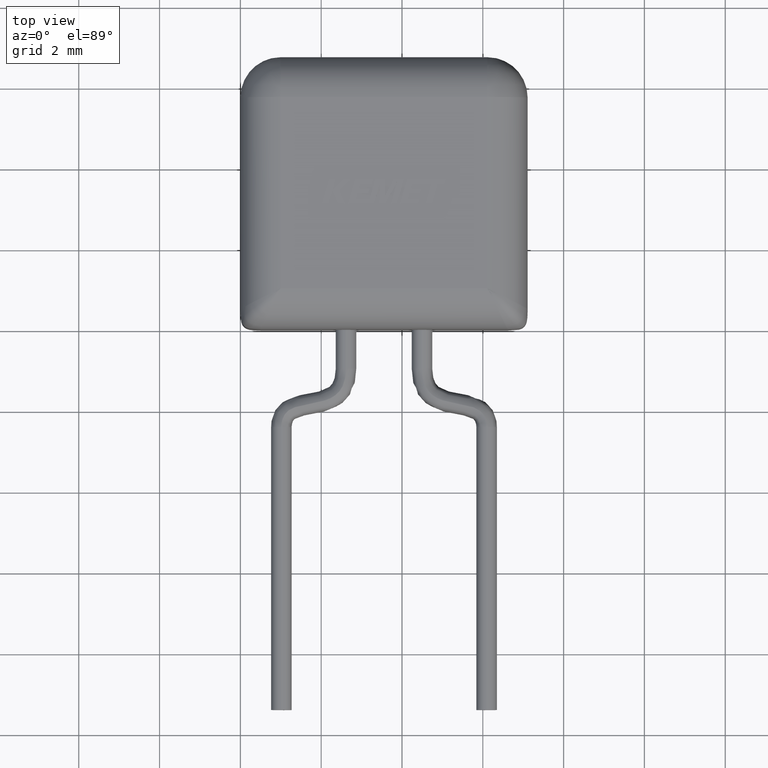
[diagram: clean part render]
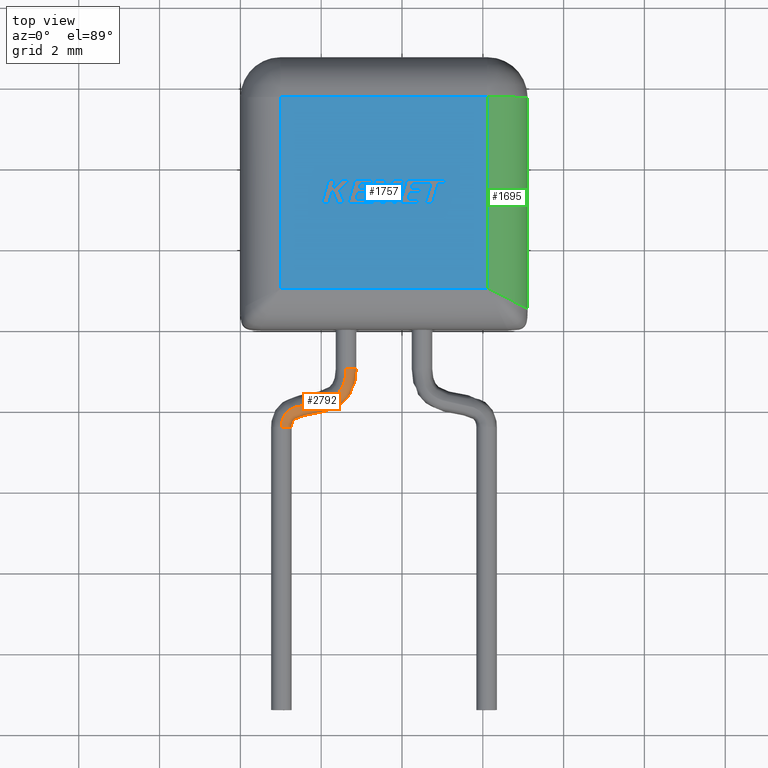
[diagram: same view with three faces highlighted in distinct colors, each labeled with its STEP entity id]
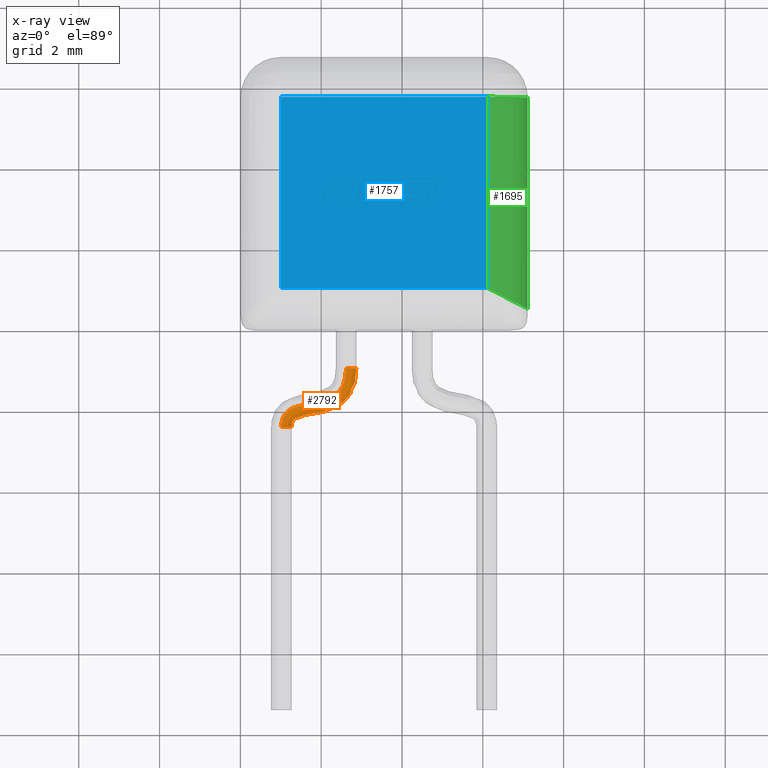
[diagram: x-ray of the same camera — body ghosted, the three highlighted faces saturated]
A machine part, top view with three faces highlighted in distinct colors.
The next image is the same camera in x-ray (body ghosted, the three faces saturated) — at least one of them is partly hidden behind the body in this view.
Their STEP definitions:

[orange] entity #2792 — the highlighted face is a freeform B-spline surface patch.
#30 = CARTESIAN_POINT ( 'NONE',  ( 2.074005809109704200, -1.170001000631125400, 2.290000000000000500 ) ) ;
#49 = CARTESIAN_POINT ( 'NONE',  ( 2.549884300647687200, -1.359776929998931700, 2.289999999999999600 ) ) ;
#50 = CARTESIAN_POINT ( 'NONE',  ( 2.062130045538650900, -1.192115525184604500, 1.780000000000000000 ) ) ;
#109 = CARTESIAN_POINT ( 'NONE',  ( 0.7537591950692089600, -1.702203256233672600, 2.289999999999999600 ) ) ;
#234 = VERTEX_POINT ( 'NONE', #3290 ) ;
#245 = CIRCLE ( 'NONE', #731, 0.2550000000000000000 ) ;
#250 = CARTESIAN_POINT ( 'NONE',  ( 2.587119580015718100, -1.242790861669816200, 1.780000000000000900 ) ) ;
#313 = ORIENTED_EDGE ( 'NONE', *, *, #4001, .F. ) ;
#319 = CARTESIAN_POINT ( 'NONE',  ( 1.131958511073970100, -2.049256904477912800, 1.780000000000000200 ) ) ;
#341 = CARTESIAN_POINT ( 'NONE',  ( 2.822460855836193400, -1.880694937676786500, 1.779999999999999100 ) ) ;
#353 = CARTESIAN_POINT ( 'NONE',  ( 2.587119580015718100, -1.242790861669816200, 1.780000000000000900 ) ) ;
#367 = CARTESIAN_POINT ( 'NONE',  ( 2.822460855836193400, -1.880694937676786500, 2.290000000000000000 ) ) ;
#377 = CARTESIAN_POINT ( 'NONE',  ( 1.019818461102901800, -2.297954229647848600, 1.780000000000000000 ) ) ;
#388 = CARTESIAN_POINT ( 'NONE',  ( 2.437983122913019800, -1.541771340368349100, 2.289999999999999600 ) ) ;
#397 = CARTESIAN_POINT ( 'NONE',  ( 2.549884300647687200, -1.359776929998931700, 1.779999999999999600 ) ) ;
#405 = CARTESIAN_POINT ( 'NONE',  ( 1.321206900618610500, -1.916348650615721000, 2.290000000000000000 ) ) ;
#457 = CARTESIAN_POINT ( 'NONE',  ( 1.531442869489896700, -1.859060736523578300, 1.780000000000000000 ) ) ;
#484 = CARTESIAN_POINT ( 'NONE',  ( 2.610143827948569600, -1.106482868413217300, 1.780000000000000200 ) ) ;
#517 = CARTESIAN_POINT ( 'NONE',  ( 0.5052511517531967900, -2.366681745301825000, 2.290000000000000500 ) ) ;
#540 = CARTESIAN_POINT ( 'NONE',  ( 2.104868535347959000, -1.008836699693396200, 1.780000000000000200 ) ) ;
#568 = CARTESIAN_POINT ( 'NONE',  ( 2.088607302755791700, -1.128908727927591100, 2.290000000000000000 ) ) ;
#731 = AXIS2_PLACEMENT_3D ( 'NONE', #1517, #2044, #1201 ) ;
#739 = CARTESIAN_POINT ( 'NONE',  ( 0.7537591950692089600, -1.702203256233672600, 1.780000000000000000 ) ) ;
#757 = CARTESIAN_POINT ( 'NONE',  ( 2.437983122913019800, -1.541771340368349100, 1.779999999999999600 ) ) ;
#778 = CARTESIAN_POINT ( 'NONE',  ( 2.499697824657698900, -1.458955382789392900, 1.780000000000000000 ) ) ;
#804 = CARTESIAN_POINT ( 'NONE',  ( 2.615000000000000700, -0.9568300000000005100, 1.780000000000000200 ) ) ;
#825 = CARTESIAN_POINT ( 'NONE',  ( 3.085631857275643200, -1.356672995412041300, 1.780000000000000200 ) ) ;
#832 = CARTESIAN_POINT ( 'NONE',  ( 2.614868535347958800, -1.008836699693396000, 1.780000000000000000 ) ) ;
#842 = CARTESIAN_POINT ( 'NONE',  ( 2.134638495703354600, -2.270692406181152200, 1.780000000000000700 ) ) ;
#866 = CARTESIAN_POINT ( 'NONE',  ( 2.400925794340954800, -2.187819091392433400, 1.780000000000000200 ) ) ;
#888 = CARTESIAN_POINT ( 'NONE',  ( 1.530867786842248400, -2.358482172163493200, 2.290000000000000500 ) ) ;
#910 = CARTESIAN_POINT ( 'NONE',  ( 1.622149668822278500, -2.359899811352273300, 2.290000000000000500 ) ) ;
#922 = CARTESIAN_POINT ( 'NONE',  ( 1.045172783188769600, -2.193943947826118900, 1.779999999999999800 ) ) ;
#934 = CARTESIAN_POINT ( 'NONE',  ( 3.125000000000001300, -0.9568300000000006200, 2.290000000000000500 ) ) ;
#942 = CARTESIAN_POINT ( 'NONE',  ( 2.012893723359805400, -1.774587104453581700, 1.780000000000000700 ) ) ;
#949 = AXIS2_PLACEMENT_3D ( 'NONE', #6351, #2219, #5267 ) ;
#964 = CARTESIAN_POINT ( 'NONE',  ( 2.499697824657698900, -1.458955382789392900, 1.780000000000000000 ) ) ;
#972 = ORIENTED_EDGE ( 'NONE', *, *, #1285, .F. ) ;
#982 = CARTESIAN_POINT ( 'NONE',  ( 1.131958511073970100, -2.049256904477912800, 1.780000000000000200 ) ) ;
#1002 = CARTESIAN_POINT ( 'NONE',  ( 2.499697824657698900, -1.458955382789392900, 1.780000000000000000 ) ) ;
#1069 = CARTESIAN_POINT ( 'NONE',  ( 2.101401957468082700, -1.050179310353557300, 1.780000000000000700 ) ) ;
#1081 = CARTESIAN_POINT ( 'NONE',  ( 1.321206900618610500, -1.916348650615721000, 1.780000000000000500 ) ) ;
#1092 = CARTESIAN_POINT ( 'NONE',  ( 2.062130045538650900, -1.192115525184604500, 2.289999999999999600 ) ) ;
#1140 = CARTESIAN_POINT ( 'NONE',  ( 1.704679356832866000, -1.315862372875403100, 2.290000000000000000 ) ) ;
#1201 = DIRECTION ( 'NONE',  ( 0.0000000000000000000, 0.0000000000000000000, -1.000000000000000000 ) ) ;
#1285 = EDGE_CURVE ( 'NONE', #1357, #5204, #6476, .T. ) ;
#1305 = CARTESIAN_POINT ( 'NONE',  ( 2.549884300647687200, -1.359776929998931700, 1.779999999999999600 ) ) ;
#1320 = CARTESIAN_POINT ( 'NONE',  ( 1.045172783188769600, -2.193943947826118900, 1.779999999999999800 ) ) ;
#1331 = CARTESIAN_POINT ( 'NONE',  ( 2.615000000000000700, -0.9568300000000005100, 1.780000000000000200 ) ) ;
#1342 = CARTESIAN_POINT ( 'NONE',  ( 1.191846210974526000, -1.995412976012255200, 1.780000000000000000 ) ) ;
#1357 = VERTEX_POINT ( 'NONE', #2963 ) ;
#1365 = CARTESIAN_POINT ( 'NONE',  ( 2.201120669814173000, -1.714313174633128400, 2.290000000000000500 ) ) ;
#1387 = CARTESIAN_POINT ( 'NONE',  ( 3.085631857275643200, -1.356672995412041300, 2.290000000000000000 ) ) ;
#1413 = CARTESIAN_POINT ( 'NONE',  ( 2.400925794340954800, -2.187819091392433400, 2.290000000000000500 ) ) ;
#1436 = CARTESIAN_POINT ( 'NONE',  ( 1.784927744996240200, -1.819851054957779500, 2.290000000000000500 ) ) ;
#1447 = CARTESIAN_POINT ( 'NONE',  ( 1.015247165164532500, -2.368698253309393200, 1.780000000000000200 ) ) ;
#1448 = CARTESIAN_POINT ( 'NONE',  ( 2.615000000000000700, -0.9568300000000005100, 2.290000000000000500 ) ) ;
#1455 = CARTESIAN_POINT ( 'NONE',  ( 2.615000000000000700, -0.9568300000000005100, 2.290000000000000500 ) ) ;
#1468 = CARTESIAN_POINT ( 'NONE',  ( 1.784927744996240200, -1.819851054957779500, 1.780000000000000000 ) ) ;
#1517 = CARTESIAN_POINT ( 'NONE',  ( 2.615000000000000700, -0.9568300000000005100, 2.035000000000000100 ) ) ;
#1538 = CARTESIAN_POINT ( 'NONE',  ( 2.201120669814173000, -1.714313174633128400, 1.779999999999999800 ) ) ;
#1598 = CARTESIAN_POINT ( 'NONE',  ( 2.088607302755791700, -1.128908727927591100, 1.780000000000000200 ) ) ;
#1667 = CARTESIAN_POINT ( 'NONE',  ( 1.045172783188769600, -2.193943947826118900, 2.289999999999999600 ) ) ;
#1668 = CARTESIAN_POINT ( 'NONE',  ( 0.8863089501418147700, -1.583497287607830200, 2.290000000000000000 ) ) ;
#1679 = ORIENTED_EDGE ( 'NONE', *, *, #4606, .T. ) ;
#1821 = CARTESIAN_POINT ( 'NONE',  ( 0.5120091319425110800, -2.220228973169733300, 1.780000000000000200 ) ) ;
#1833 = CARTESIAN_POINT ( 'NONE',  ( 2.201120669814173000, -1.714313174633128400, 1.779999999999999800 ) ) ;
#1843 = CARTESIAN_POINT ( 'NONE',  ( 2.615000000000000700, -0.9568300000000005100, 1.780000000000000200 ) ) ;
#1898 = CARTESIAN_POINT ( 'NONE',  ( 1.045172783188769600, -2.193943947826118900, 2.289999999999999600 ) ) ;
#1922 = CARTESIAN_POINT ( 'NONE',  ( 1.497383471807237600, -2.407328664416680500, 2.290000000000000000 ) ) ;
#1933 = CARTESIAN_POINT ( 'NONE',  ( 1.014999999999996100, -2.406829999999998500, 1.780000000000000200 ) ) ;
#1944 = CARTESIAN_POINT ( 'NONE',  ( 3.124868535347959500, -1.008836699693396200, 2.290000000000000500 ) ) ;
#1970 = CARTESIAN_POINT ( 'NONE',  ( 1.524460958118500200, -2.377591545109373900, 1.780000000000000000 ) ) ;
#1994 = CARTESIAN_POINT ( 'NONE',  ( 2.343189242479164900, -1.631962061346997000, 2.290000000000000900 ) ) ;
#2044 = DIRECTION ( 'NONE',  ( 0.0000000000000000000, -1.000000000000000000, 0.0000000000000000000 ) ) ;
#2109 = B_SPLINE_CURVE_WITH_KNOTS ( 'NONE', 3,
 ( #1448, #3520, #5585, #6220, #49, #6268, #3722, #3648, #6196, #5724, #3153, #5249, #2652, #3623, #5184, #5767, #1667, #4169, #4692, #5208 ),
 .UNSPECIFIED., .F., .F.,
 ( 4, 1, 1, 1, 1, 1, 1, 1, 1, 1, 1, 1, 1, 1, 1, 1, 1, 4 ),
 ( 0.0000000000000000000, 0.06342468864548422800, 0.1189530044408957000, 0.1681323856285391300, 0.2125779591982254200, 0.2538796813893964800, 0.2934636714594621200, 0.3714530023859107200, 0.4515100979993099700, 0.5336014173042280500, 0.6546871446179836100, 0.7643538128143175800, 0.7981158558278648200, 0.8345807126270272700, 0.8735248396365576900, 0.9131030441429317500, 0.9534956162015753000, 0.9999999999999998900 ),
 .UNSPECIFIED. ) ;
#2132 = CARTESIAN_POINT ( 'NONE',  ( 2.001315545287391200, -1.240807257873826700, 1.780000000000000200 ) ) ;
#2153 = CARTESIAN_POINT ( 'NONE',  ( 1.140785276839166900, -1.430004434564585700, 2.290000000000000000 ) ) ;
#2219 = DIRECTION ( 'NONE',  ( -0.003953937269739775900, -0.9999921831594820200, 0.0000000000000000000 ) ) ;
#2296 = CARTESIAN_POINT ( 'NONE',  ( 2.012893723359805400, -1.774587104453581700, 1.780000000000000700 ) ) ;
#2303 = CARTESIAN_POINT ( 'NONE',  ( 0.5594777795352914300, -2.029405723488745500, 1.779999999999999800 ) ) ;
#2322 = CARTESIAN_POINT ( 'NONE',  ( 1.014999999999996100, -2.406829999999998500, 1.780000000000000200 ) ) ;
#2391 = CARTESIAN_POINT ( 'NONE',  ( 2.343189242479164900, -1.631962061346997000, 1.780000000000000500 ) ) ;
#2417 = CARTESIAN_POINT ( 'NONE',  ( 1.131958511073970100, -2.049256904477912800, 2.290000000000000500 ) ) ;
#2437 = CARTESIAN_POINT ( 'NONE',  ( 1.497383471807237600, -2.407328664416680500, 1.779999999999999600 ) ) ;
#2454 = CARTESIAN_POINT ( 'NONE',  ( 1.510157827078731000, -2.396310552722153500, 2.289999999999999600 ) ) ;
#2472 = CARTESIAN_POINT ( 'NONE',  ( 1.019818461102901800, -2.297954229647848600, 2.289999999999999600 ) ) ;
#2502 = CARTESIAN_POINT ( 'NONE',  ( 2.105000000000000900, -0.9568300000000006200, 2.290000000000000500 ) ) ;
#2567 = CARTESIAN_POINT ( 'NONE',  ( 2.343189242479164900, -1.631962061346997000, 1.780000000000000500 ) ) ;
#2597 = CARTESIAN_POINT ( 'NONE',  ( 1.015247165164532500, -2.368698253309393200, 1.780000000000000200 ) ) ;
#2652 = CARTESIAN_POINT ( 'NONE',  ( 1.321206900618610500, -1.916348650615721000, 2.290000000000000000 ) ) ;
#2689 = CARTESIAN_POINT ( 'NONE',  ( 0.5120091319425110800, -2.220228973169733300, 2.289999999999999600 ) ) ;
#2713 = CARTESIAN_POINT ( 'NONE',  ( 1.704679356832866000, -1.315862372875403100, 1.780000000000000000 ) ) ;
#2792 = ADVANCED_FACE ( 'NONE', ( #5525 ), #4580, .T. ) ;
#2811 = CARTESIAN_POINT ( 'NONE',  ( 1.014999999999996100, -2.406829999999998500, 2.290000000000000500 ) ) ;
#2816 = CARTESIAN_POINT ( 'NONE',  ( 3.118885698429058300, -1.162786426472878000, 1.780000000000000700 ) ) ;
#2825 = EDGE_LOOP ( 'NONE', ( #5858, #1679, #313, #972 ) ) ;
#2903 = CARTESIAN_POINT ( 'NONE',  ( 1.784927744996240200, -1.819851054957779500, 1.780000000000000000 ) ) ;
#2906 = VERTEX_POINT ( 'NONE', #2811 ) ;
#2938 = CARTESIAN_POINT ( 'NONE',  ( 1.531442869489896700, -1.859060736523578300, 1.780000000000000000 ) ) ;
#2949 = CARTESIAN_POINT ( 'NONE',  ( 1.510157827078731000, -2.396310552722153500, 1.780000000000000000 ) ) ;
#2963 = CARTESIAN_POINT ( 'NONE',  ( 2.615000000000000700, -0.9568300000000005100, 1.780000000000000200 ) ) ;
#2972 = CARTESIAN_POINT ( 'NONE',  ( 2.610143827948569600, -1.106482868413217300, 2.290000000000000000 ) ) ;
#2997 = CARTESIAN_POINT ( 'NONE',  ( 1.015247165164532500, -2.368698253309393200, 2.290000000000000500 ) ) ;
#3021 = CARTESIAN_POINT ( 'NONE',  ( 1.524460958118500200, -2.377591545109373900, 2.290000000000000500 ) ) ;
#3071 = CARTESIAN_POINT ( 'NONE',  ( 2.587119580015718100, -1.242790861669816200, 1.780000000000000900 ) ) ;
#3089 = CARTESIAN_POINT ( 'NONE',  ( 1.784927744996240200, -1.819851054957779500, 1.780000000000000000 ) ) ;
#3138 = CARTESIAN_POINT ( 'NONE',  ( 1.083150443577862300, -2.114008245178025500, 1.780000000000000700 ) ) ;
#3153 = CARTESIAN_POINT ( 'NONE',  ( 1.784927744996240200, -1.819851054957779500, 2.290000000000000500 ) ) ;
#3155 = CARTESIAN_POINT ( 'NONE',  ( 2.074005809109704200, -1.170001000631125400, 1.779999999999999100 ) ) ;
#3290 = CARTESIAN_POINT ( 'NONE',  ( 2.615000000000000700, -0.9568300000000005100, 2.290000000000000500 ) ) ;
#3426 = CARTESIAN_POINT ( 'NONE',  ( 3.025762792185672500, -1.549552859366738300, 1.779999999999999100 ) ) ;
#3448 = CARTESIAN_POINT ( 'NONE',  ( 3.118885698429058300, -1.162786426472878000, 2.290000000000000500 ) ) ;
#3457 = CARTESIAN_POINT ( 'NONE',  ( 2.201120669814173000, -1.714313174633128400, 1.779999999999999800 ) ) ;
#3470 = CARTESIAN_POINT ( 'NONE',  ( 2.614868535347958800, -1.008836699693396000, 2.290000000000000500 ) ) ;
#3478 = CARTESIAN_POINT ( 'NONE',  ( 2.343189242479164900, -1.631962061346997000, 1.780000000000000500 ) ) ;
#3509 = CARTESIAN_POINT ( 'NONE',  ( 2.549884300647687200, -1.359776929998931700, 2.289999999999999600 ) ) ;
#3520 = CARTESIAN_POINT ( 'NONE',  ( 2.614868535347958800, -1.008836699693396000, 2.290000000000000500 ) ) ;
#3594 = CARTESIAN_POINT ( 'NONE',  ( 1.019818461102901800, -2.297954229647848600, 1.780000000000000000 ) ) ;
#3623 = CARTESIAN_POINT ( 'NONE',  ( 1.191846210974526000, -1.995412976012255200, 2.290000000000000000 ) ) ;
#3648 = CARTESIAN_POINT ( 'NONE',  ( 2.343189242479164900, -1.631962061346997000, 2.290000000000000900 ) ) ;
#3649 = CARTESIAN_POINT ( 'NONE',  ( 2.053505389989847400, -1.202847743059912900, 1.779999999999999100 ) ) ;
#3674 = CARTESIAN_POINT ( 'NONE',  ( 2.040646561674422700, -1.215180293843567200, 2.290000000000000500 ) ) ;
#3699 = CARTESIAN_POINT ( 'NONE',  ( 2.104868535347959000, -1.008836699693396200, 2.290000000000000500 ) ) ;
#3722 = CARTESIAN_POINT ( 'NONE',  ( 2.437983122913019800, -1.541771340368349100, 2.289999999999999600 ) ) ;
#3724 = CARTESIAN_POINT ( 'NONE',  ( 0.8863089501418147700, -1.583497287607830200, 1.779999999999999600 ) ) ;
#3789 = CARTESIAN_POINT ( 'NONE',  ( 1.891148951016255800, -1.278481802726011600, 1.780000000000000700 ) ) ;
#3849 = CARTESIAN_POINT ( 'NONE',  ( 2.614868535347958800, -1.008836699693396000, 1.780000000000000000 ) ) ;
#3913 = CARTESIAN_POINT ( 'NONE',  ( 2.610143827948569600, -1.106482868413217300, 1.780000000000000200 ) ) ;
#3987 = CARTESIAN_POINT ( 'NONE',  ( 2.645731923283906300, -2.048743828850426500, 2.290000000000000500 ) ) ;
#4001 = EDGE_CURVE ( 'NONE', #5204, #2906, #5335, .T. ) ;
#4010 = CARTESIAN_POINT ( 'NONE',  ( 2.012893723359805400, -1.774587104453581700, 2.290000000000000500 ) ) ;
#4030 = CARTESIAN_POINT ( 'NONE',  ( 2.937265603776745500, -1.725795240394180500, 2.289999999999999600 ) ) ;
#4155 = CARTESIAN_POINT ( 'NONE',  ( 2.012893723359805400, -1.774587104453581700, 1.780000000000000700 ) ) ;
#4169 = CARTESIAN_POINT ( 'NONE',  ( 1.019818461102901800, -2.297954229647848600, 2.289999999999999600 ) ) ;
#4200 = EDGE_CURVE ( 'NONE', #1357, #234, #245, .T. ) ;
#4287 = CARTESIAN_POINT ( 'NONE',  ( 1.140785276839166900, -1.430004434564585700, 1.780000000000000200 ) ) ;
#4345 = CARTESIAN_POINT ( 'NONE',  ( 2.937265603776745500, -1.725795240394180500, 1.780000000000000000 ) ) ;
#4361 = CARTESIAN_POINT ( 'NONE',  ( 1.015247165164532500, -2.368698253309393200, 1.780000000000000200 ) ) ;
#4458 = CARTESIAN_POINT ( 'NONE',  ( 1.865176133159613900, -2.323839737040155600, 2.290000000000000000 ) ) ;
#4472 = CARTESIAN_POINT ( 'NONE',  ( 2.134638495703354600, -2.270692406181152200, 2.290000000000000500 ) ) ;
#4527 = CARTESIAN_POINT ( 'NONE',  ( 2.645731923283906300, -2.048743828850426500, 1.780000000000000700 ) ) ;
#4546 = CARTESIAN_POINT ( 'NONE',  ( 3.025762792185672500, -1.549552859366738300, 2.290000000000000500 ) ) ;
#4579 = CARTESIAN_POINT ( 'NONE',  ( 2.437983122913019800, -1.541771340368349100, 1.779999999999999600 ) ) ;
#4580 =( BOUNDED_SURFACE ( )  B_SPLINE_SURFACE ( 3, 3, ( 
 ( #804, #3849, #3913, #250, #1305, #778, #757, #2391, #1833, #2296, #2903, #5395, #6503, #1342, #319, #5899, #1320, #5435, #4361, #2322 ),
 ( #5463, #6475, #2816, #825, #3426, #4345, #341, #4527, #866, #842, #6036, #5527, #6531, #2437, #2949, #1970, #6096, #6553, #6014, #5018 ),
 ( #934, #1944, #3448, #1387, #4546, #4030, #367, #3987, #1413, #4472, #4458, #910, #6052, #1922, #2454, #3021, #888, #5062, #5507, #6071 ),
 ( #1455, #3470, #2972, #5036, #3509, #6576, #388, #1994, #1365, #4010, #1436, #5568, #405, #4976, #2417, #5547, #1898, #2472, #2997, #6604 ),
 ( #2502, #3699, #5770, #568, #30, #1092, #5745, #3674, #5705, #4694, #1140, #4716, #2153, #1668, #109, #5164, #5251, #2689, #517, #6197 ),
 ( #6221, #540, #1069, #1598, #3155, #50, #3649, #5211, #2132, #3789, #2713, #4762, #4287, #3724, #739, #5379, #2303, #1821, #5404, #5922 ),
 ( #1843, #6456, #484, #3071, #5689, #1002, #6165, #2567, #1538, #4155, #3089, #457, #1081, #6695, #982, #3138, #4597, #3594, #2597, #4635 ) ),
 .UNSPECIFIED., .T., .F., .F. ) 
 B_SPLINE_SURFACE_WITH_KNOTS ( ( 4, 3, 4 ),
 ( 4, 1, 1, 1, 1, 1, 1, 1, 1, 1, 1, 1, 1, 1, 1, 1, 1, 4 ),
 ( 0.0000000000000000000, 0.5000000000000000000, 1.000000000000000000 ),
 ( 0.0000000000000000000, 0.06342468864548422800, 0.1189530044408957000, 0.1681323856285391300, 0.2125779591982254200, 0.2538796813893964800, 0.2934636714594621200, 0.3714530023859107200, 0.4515100979993099700, 0.5336014173042280500, 0.6546871446179836100, 0.7643538128143175800, 0.7981158558278648200, 0.8345807126270272700, 0.8735248396365576900, 0.9131030441429317500, 0.9534956162015753000, 0.9999999999999998900 ),
 .UNSPECIFIED. ) 
 GEOMETRIC_REPRESENTATION_ITEM ( )  RATIONAL_B_SPLINE_SURFACE ( (
 ( 1.000000000000000000, 1.000000000000000000, 1.000000000000000200, 0.9999999999999997800, 1.000000000000000000, 1.000000000000000200, 1.000000000000000000, 1.000000000000000000, 1.000000000000000200, 1.000000000000000000, 1.000000000000000000, 1.000000000000000200, 0.9999999999999995600, 1.000000000000000200, 1.000000000000000000, 1.000000000000000000, 1.000000000000000000, 0.9999999999999997800, 1.000000000000000000, 1.000000000000000000),
 ( 0.3333333333333333700, 0.3333333333333333700, 0.3333333333333333700, 0.3333333333333333700, 0.3333333333333333100, 0.3333333333333335400, 0.3333333333333333100, 0.3333333333333333700, 0.3333333333333333700, 0.3333333333333333700, 0.3333333333333334300, 0.3333333333333334300, 0.3333333333333332000, 0.3333333333333334800, 0.3333333333333334300, 0.3333333333333334300, 0.3333333333333333100, 0.3333333333333332600, 0.3333333333333333700, 0.3333333333333333700),
 ( 0.3333333333333333700, 0.3333333333333333700, 0.3333333333333333700, 0.3333333333333333700, 0.3333333333333333100, 0.3333333333333335400, 0.3333333333333333100, 0.3333333333333333700, 0.3333333333333333700, 0.3333333333333333700, 0.3333333333333334300, 0.3333333333333334300, 0.3333333333333332000, 0.3333333333333334800, 0.3333333333333334300, 0.3333333333333334300, 0.3333333333333333100, 0.3333333333333332600, 0.3333333333333333700, 0.3333333333333333700),
 ( 1.000000000000000000, 1.000000000000000000, 1.000000000000000200, 0.9999999999999997800, 1.000000000000000000, 1.000000000000000200, 1.000000000000000000, 1.000000000000000000, 1.000000000000000200, 1.000000000000000000, 1.000000000000000000, 1.000000000000000200, 0.9999999999999995600, 1.000000000000000200, 1.000000000000000000, 1.000000000000000000, 1.000000000000000000, 0.9999999999999997800, 1.000000000000000000, 1.000000000000000000),
 ( 0.3333333333333333700, 0.3333333333333333700, 0.3333333333333333700, 0.3333333333333333700, 0.3333333333333333100, 0.3333333333333335400, 0.3333333333333333100, 0.3333333333333333700, 0.3333333333333333700, 0.3333333333333333700, 0.3333333333333334300, 0.3333333333333334300, 0.3333333333333332000, 0.3333333333333334800, 0.3333333333333334300, 0.3333333333333334300, 0.3333333333333333100, 0.3333333333333332600, 0.3333333333333333700, 0.3333333333333333700),
 ( 0.3333333333333333700, 0.3333333333333333700, 0.3333333333333333700, 0.3333333333333333700, 0.3333333333333333100, 0.3333333333333335400, 0.3333333333333333100, 0.3333333333333333700, 0.3333333333333333700, 0.3333333333333333700, 0.3333333333333334300, 0.3333333333333334300, 0.3333333333333332000, 0.3333333333333334800, 0.3333333333333334300, 0.3333333333333334300, 0.3333333333333333100, 0.3333333333333332600, 0.3333333333333333700, 0.3333333333333333700),
 ( 1.000000000000000000, 1.000000000000000000, 1.000000000000000200, 0.9999999999999997800, 1.000000000000000000, 1.000000000000000200, 1.000000000000000000, 1.000000000000000000, 1.000000000000000200, 1.000000000000000000, 1.000000000000000000, 1.000000000000000200, 0.9999999999999995600, 1.000000000000000200, 1.000000000000000000, 1.000000000000000000, 1.000000000000000000, 0.9999999999999997800, 1.000000000000000000, 1.000000000000000000) ) ) 
 REPRESENTATION_ITEM ( '' )  SURFACE ( )  );
#4597 = CARTESIAN_POINT ( 'NONE',  ( 1.045172783188769600, -2.193943947826118900, 1.779999999999999800 ) ) ;
#4606 = EDGE_CURVE ( 'NONE', #234, #2906, #2109, .T. ) ;
#4635 = CARTESIAN_POINT ( 'NONE',  ( 1.014999999999996100, -2.406829999999998500, 1.780000000000000200 ) ) ;
#4692 = CARTESIAN_POINT ( 'NONE',  ( 1.015247165164532500, -2.368698253309393200, 2.290000000000000500 ) ) ;
#4694 = CARTESIAN_POINT ( 'NONE',  ( 1.891148951016255800, -1.278481802726011600, 2.290000000000000500 ) ) ;
#4716 = CARTESIAN_POINT ( 'NONE',  ( 1.440736070157514300, -1.358221661694883000, 2.290000000000000500 ) ) ;
#4762 = CARTESIAN_POINT ( 'NONE',  ( 1.440736070157514300, -1.358221661694883000, 1.780000000000000700 ) ) ;
#4964 = CARTESIAN_POINT ( 'NONE',  ( 2.610143827948569600, -1.106482868413217300, 1.780000000000000200 ) ) ;
#4976 = CARTESIAN_POINT ( 'NONE',  ( 1.191846210974526000, -1.995412976012255200, 2.290000000000000000 ) ) ;
#5018 = CARTESIAN_POINT ( 'NONE',  ( 1.524996013411332300, -2.408846508007564900, 1.780000000000000200 ) ) ;
#5026 = CARTESIAN_POINT ( 'NONE',  ( 1.191846210974526000, -1.995412976012255200, 1.780000000000000000 ) ) ;
#5036 = CARTESIAN_POINT ( 'NONE',  ( 2.587119580015718100, -1.242790861669816200, 2.290000000000000900 ) ) ;
#5062 = CARTESIAN_POINT ( 'NONE',  ( 1.527627790263292900, -2.375679486125964700, 2.289999999999999600 ) ) ;
#5164 = CARTESIAN_POINT ( 'NONE',  ( 0.6418399290372243100, -1.850424945246675200, 2.290000000000000500 ) ) ;
#5184 = CARTESIAN_POINT ( 'NONE',  ( 1.131958511073970100, -2.049256904477912800, 2.290000000000000500 ) ) ;
#5204 = VERTEX_POINT ( 'NONE', #1933 ) ;
#5208 = CARTESIAN_POINT ( 'NONE',  ( 1.014999999999996100, -2.406829999999998500, 2.290000000000000500 ) ) ;
#5211 = CARTESIAN_POINT ( 'NONE',  ( 2.040646561674422700, -1.215180293843567200, 1.780000000000000700 ) ) ;
#5249 = CARTESIAN_POINT ( 'NONE',  ( 1.531442869489896700, -1.859060736523578300, 2.290000000000000500 ) ) ;
#5251 = CARTESIAN_POINT ( 'NONE',  ( 0.5594777795352914300, -2.029405723488745500, 2.290000000000000500 ) ) ;
#5267 = DIRECTION ( 'NONE',  ( 0.0000000000000000000, 0.0000000000000000000, -1.000000000000000000 ) ) ;
#5335 = CIRCLE ( 'NONE', #949, 0.2550000000000000000 ) ;
#5379 = CARTESIAN_POINT ( 'NONE',  ( 0.6418399290372243100, -1.850424945246675200, 1.780000000000000000 ) ) ;
#5395 = CARTESIAN_POINT ( 'NONE',  ( 1.531442869489896700, -1.859060736523578300, 1.780000000000000000 ) ) ;
#5404 = CARTESIAN_POINT ( 'NONE',  ( 0.5052511517531967900, -2.366681745301825000, 1.780000000000000200 ) ) ;
#5435 = CARTESIAN_POINT ( 'NONE',  ( 1.019818461102901800, -2.297954229647848600, 1.780000000000000000 ) ) ;
#5463 = CARTESIAN_POINT ( 'NONE',  ( 3.125000000000001300, -0.9568300000000006200, 1.780000000000000200 ) ) ;
#5507 = CARTESIAN_POINT ( 'NONE',  ( 1.525243178575868400, -2.370714761316959700, 2.290000000000000500 ) ) ;
#5525 = FACE_OUTER_BOUND ( 'NONE', #2825, .T. ) ;
#5527 = CARTESIAN_POINT ( 'NONE',  ( 1.622149668822278500, -2.359899811352273300, 1.780000000000000700 ) ) ;
#5547 = CARTESIAN_POINT ( 'NONE',  ( 1.083150443577862300, -2.114008245178025500, 2.290000000000000500 ) ) ;
#5568 = CARTESIAN_POINT ( 'NONE',  ( 1.531442869489896700, -1.859060736523578300, 2.290000000000000500 ) ) ;
#5585 = CARTESIAN_POINT ( 'NONE',  ( 2.610143827948569600, -1.106482868413217300, 2.290000000000000000 ) ) ;
#5689 = CARTESIAN_POINT ( 'NONE',  ( 2.549884300647687200, -1.359776929998931700, 1.779999999999999600 ) ) ;
#5705 = CARTESIAN_POINT ( 'NONE',  ( 2.001315545287391200, -1.240807257873826700, 2.290000000000000500 ) ) ;
#5724 = CARTESIAN_POINT ( 'NONE',  ( 2.012893723359805400, -1.774587104453581700, 2.290000000000000500 ) ) ;
#5745 = CARTESIAN_POINT ( 'NONE',  ( 2.053505389989847400, -1.202847743059912900, 2.290000000000000000 ) ) ;
#5767 = CARTESIAN_POINT ( 'NONE',  ( 1.083150443577862300, -2.114008245178025500, 2.290000000000000500 ) ) ;
#5770 = CARTESIAN_POINT ( 'NONE',  ( 2.101401957468082700, -1.050179310353557300, 2.290000000000000500 ) ) ;
#5858 = ORIENTED_EDGE ( 'NONE', *, *, #4200, .T. ) ;
#5899 = CARTESIAN_POINT ( 'NONE',  ( 1.083150443577862300, -2.114008245178025500, 1.780000000000000700 ) ) ;
#5922 = CARTESIAN_POINT ( 'NONE',  ( 0.5050039865886604100, -2.404813491992431100, 1.780000000000000200 ) ) ;
#6014 = CARTESIAN_POINT ( 'NONE',  ( 1.525243178575868400, -2.370714761316959700, 1.780000000000000200 ) ) ;
#6026 = CARTESIAN_POINT ( 'NONE',  ( 1.131958511073970100, -2.049256904477912800, 1.780000000000000200 ) ) ;
#6036 = CARTESIAN_POINT ( 'NONE',  ( 1.865176133159613900, -2.323839737040155600, 1.780000000000000000 ) ) ;
#6052 = CARTESIAN_POINT ( 'NONE',  ( 1.501628524398054700, -2.402692866666858800, 2.290000000000000000 ) ) ;
#6071 = CARTESIAN_POINT ( 'NONE',  ( 1.524996013411332300, -2.408846508007564900, 2.290000000000000500 ) ) ;
#6096 = CARTESIAN_POINT ( 'NONE',  ( 1.530867786842248400, -2.358482172163493200, 1.779999999999999800 ) ) ;
#6109 = CARTESIAN_POINT ( 'NONE',  ( 1.321206900618610500, -1.916348650615721000, 1.780000000000000500 ) ) ;
#6165 = CARTESIAN_POINT ( 'NONE',  ( 2.437983122913019800, -1.541771340368349100, 1.779999999999999600 ) ) ;
#6196 = CARTESIAN_POINT ( 'NONE',  ( 2.201120669814173000, -1.714313174633128400, 2.290000000000000500 ) ) ;
#6197 = CARTESIAN_POINT ( 'NONE',  ( 0.5050039865886604100, -2.404813491992431100, 2.290000000000000500 ) ) ;
#6220 = CARTESIAN_POINT ( 'NONE',  ( 2.587119580015718100, -1.242790861669816200, 2.290000000000000900 ) ) ;
#6221 = CARTESIAN_POINT ( 'NONE',  ( 2.105000000000000900, -0.9568300000000006200, 1.780000000000000200 ) ) ;
#6268 = CARTESIAN_POINT ( 'NONE',  ( 2.499697824657698900, -1.458955382789392900, 2.290000000000000000 ) ) ;
#6351 = CARTESIAN_POINT ( 'NONE',  ( 1.014999999999996100, -2.406829999999998500, 2.035000000000000100 ) ) ;
#6456 = CARTESIAN_POINT ( 'NONE',  ( 2.614868535347958800, -1.008836699693396000, 1.780000000000000000 ) ) ;
#6475 = CARTESIAN_POINT ( 'NONE',  ( 3.124868535347959500, -1.008836699693396200, 1.780000000000000200 ) ) ;
#6476 = B_SPLINE_CURVE_WITH_KNOTS ( 'NONE', 3,
 ( #1331, #832, #4964, #353, #397, #964, #4579, #3478, #3457, #942, #1468, #2938, #6109, #5026, #6026, #6635, #922, #377, #1447, #6542 ),
 .UNSPECIFIED., .F., .F.,
 ( 4, 1, 1, 1, 1, 1, 1, 1, 1, 1, 1, 1, 1, 1, 1, 1, 1, 4 ),
 ( 0.0000000000000000000, 0.06342468864548422800, 0.1189530044408957000, 0.1681323856285391300, 0.2125779591982254200, 0.2538796813893964800, 0.2934636714594621200, 0.3714530023859107200, 0.4515100979993099700, 0.5336014173042280500, 0.6546871446179836100, 0.7643538128143175800, 0.7981158558278648200, 0.8345807126270272700, 0.8735248396365576900, 0.9131030441429317500, 0.9534956162015753000, 0.9999999999999998900 ),
 .UNSPECIFIED. ) ;
#6503 = CARTESIAN_POINT ( 'NONE',  ( 1.321206900618610500, -1.916348650615721000, 1.780000000000000500 ) ) ;
#6531 = CARTESIAN_POINT ( 'NONE',  ( 1.501628524398054700, -2.402692866666858800, 1.780000000000000200 ) ) ;
#6542 = CARTESIAN_POINT ( 'NONE',  ( 1.014999999999996100, -2.406829999999998500, 1.780000000000000200 ) ) ;
#6553 = CARTESIAN_POINT ( 'NONE',  ( 1.527627790263292900, -2.375679486125964700, 1.780000000000000200 ) ) ;
#6576 = CARTESIAN_POINT ( 'NONE',  ( 2.499697824657698900, -1.458955382789392900, 2.290000000000000000 ) ) ;
#6604 = CARTESIAN_POINT ( 'NONE',  ( 1.014999999999996100, -2.406829999999998500, 2.290000000000000500 ) ) ;
#6635 = CARTESIAN_POINT ( 'NONE',  ( 1.083150443577862300, -2.114008245178025500, 1.780000000000000700 ) ) ;
#6695 = CARTESIAN_POINT ( 'NONE',  ( 1.191846210974526000, -1.995412976012255200, 1.780000000000000000 ) ) ;

[blue] entity #1757 — the highlighted planar face has unit normal (0, 0, -1).
#72 = CARTESIAN_POINT ( 'NONE',  ( 1.000000000000000000, 5.733170000000000300, 4.070000000000000300 ) ) ;
#111 = VECTOR ( 'NONE', #3173, 1000.000000000000000 ) ;
#280 = VECTOR ( 'NONE', #5285, 1000.000000000000000 ) ;
#635 = CARTESIAN_POINT ( 'NONE',  ( 6.110000000000000300, 5.733170000000000300, 4.070000000000000300 ) ) ;
#838 = ORIENTED_EDGE ( 'NONE', *, *, #3184, .T. ) ;
#1264 = DIRECTION ( 'NONE',  ( 0.0000000000000000000, 0.0000000000000000000, -1.000000000000000000 ) ) ;
#1757 = ADVANCED_FACE ( 'NONE', ( #4333 ), #2297, .F. ) ;
#1798 = DIRECTION ( 'NONE',  ( -1.000000000000000000, 0.0000000000000000000, -0.0000000000000000000 ) ) ;
#1996 = ORIENTED_EDGE ( 'NONE', *, *, #2583, .T. ) ;
#2126 = CARTESIAN_POINT ( 'NONE',  ( 1.000000000000000000, 1.000000000000000000, 4.070000000000000300 ) ) ;
#2297 = PLANE ( 'NONE',  #6648 ) ;
#2462 = DIRECTION ( 'NONE',  ( 1.000000000000000000, -0.0000000000000000000, 0.0000000000000000000 ) ) ;
#2583 = EDGE_CURVE ( 'NONE', #4664, #3700, #3596, .T. ) ;
#2632 = VECTOR ( 'NONE', #2462, 1000.000000000000000 ) ;
#2698 = VECTOR ( 'NONE', #5011, 1000.000000000000000 ) ;
#2741 = ORIENTED_EDGE ( 'NONE', *, *, #6691, .T. ) ;
#3173 = DIRECTION ( 'NONE',  ( 0.0000000000000000000, 1.000000000000000000, 0.0000000000000000000 ) ) ;
#3184 = EDGE_CURVE ( 'NONE', #3700, #4414, #6493, .T. ) ;
#3486 = EDGE_CURVE ( 'NONE', #4414, #4032, #6163, .T. ) ;
#3596 = LINE ( 'NONE', #3823, #280 ) ;
#3619 = CARTESIAN_POINT ( 'NONE',  ( 6.110000000000000300, 0.0000000000000000000, 4.070000000000000300 ) ) ;
#3700 = VERTEX_POINT ( 'NONE', #2126 ) ;
#3823 = CARTESIAN_POINT ( 'NONE',  ( 1.000000000000000000, 0.0000000000000000000, 4.070000000000000300 ) ) ;
#4002 = ORIENTED_EDGE ( 'NONE', *, *, #3486, .T. ) ;
#4032 = VERTEX_POINT ( 'NONE', #635 ) ;
#4067 = LINE ( 'NONE', #4489, #2698 ) ;
#4302 = CARTESIAN_POINT ( 'NONE',  ( 0.0000000000000000000, 0.0000000000000000000, 4.070000000000000300 ) ) ;
#4333 = FACE_OUTER_BOUND ( 'NONE', #4922, .T. ) ;
#4414 = VERTEX_POINT ( 'NONE', #6063 ) ;
#4489 = CARTESIAN_POINT ( 'NONE',  ( 0.0000000000000000000, 5.733170000000000300, 4.070000000000000300 ) ) ;
#4664 = VERTEX_POINT ( 'NONE', #72 ) ;
#4922 = EDGE_LOOP ( 'NONE', ( #838, #4002, #2741, #1996 ) ) ;
#5011 = DIRECTION ( 'NONE',  ( -1.000000000000000000, 0.0000000000000000000, 0.0000000000000000000 ) ) ;
#5285 = DIRECTION ( 'NONE',  ( 0.0000000000000000000, -1.000000000000000000, 0.0000000000000000000 ) ) ;
#5538 = CARTESIAN_POINT ( 'NONE',  ( 0.0000000000000000000, 1.000000000000000000, 4.070000000000000300 ) ) ;
#6063 = CARTESIAN_POINT ( 'NONE',  ( 6.110000000000000300, 1.000000000000000000, 4.070000000000000300 ) ) ;
#6163 = LINE ( 'NONE', #3619, #111 ) ;
#6493 = LINE ( 'NONE', #5538, #2632 ) ;
#6648 = AXIS2_PLACEMENT_3D ( 'NONE', #4302, #1264, #1798 ) ;
#6691 = EDGE_CURVE ( 'NONE', #4032, #4664, #4067, .T. ) ;

[green] entity #1695 — the highlighted cylindrical surface (partial cylindrical patch) has radius 1 mm, axis along (0, 1, 0).
#111 = VECTOR ( 'NONE', #3173, 1000.000000000000000 ) ;
#336 = CARTESIAN_POINT ( 'NONE',  ( 6.470356891803280800, 0.8198228131889120400, 4.002818397204460000 ) ) ;
#635 = CARTESIAN_POINT ( 'NONE',  ( 6.110000000000000300, 5.733170000000000300, 4.070000000000000300 ) ) ;
#651 = DIRECTION ( 'NONE',  ( 0.0000000000000000000, 1.000000000000000000, 0.0000000000000000000 ) ) ;
#789 = ORIENTED_EDGE ( 'NONE', *, *, #4465, .F. ) ;
#836 = CARTESIAN_POINT ( 'NONE',  ( 6.790647056318859700, 0.6596796533772907300, 3.802663536167042700 ) ) ;
#861 = CARTESIAN_POINT ( 'NONE',  ( 6.966919841673941100, 0.5715514029671683300, 3.586474704268900000 ) ) ;
#929 = CARTESIAN_POINT ( 'NONE',  ( 6.356437673118471700, 0.8769972830771041200, 4.039659420104192700 ) ) ;
#1064 = CARTESIAN_POINT ( 'NONE',  ( 7.110000000000000300, 0.5000000000000000000, 3.070000000000001200 ) ) ;
#1159 = DIRECTION ( 'NONE',  ( 0.0000000000000000000, 0.0000000000000000000, 1.000000000000000000 ) ) ;
#1355 = DIRECTION ( 'NONE',  ( 0.0000000000000000000, 0.0000000000000000000, 1.000000000000000000 ) ) ;
#1360 = CARTESIAN_POINT ( 'NONE',  ( 7.018671087904277100, 0.5456518368485969700, 3.487879529391313000 ) ) ;
#1405 = DIRECTION ( 'NONE',  ( 0.0000000000000000000, 1.000000000000000000, 0.0000000000000000000 ) ) ;
#1432 = CARTESIAN_POINT ( 'NONE',  ( 6.847763347920218500, 0.6311094967416772700, 3.748665368751432000 ) ) ;
#1508 = VERTEX_POINT ( 'NONE', #1064 ) ;
#1518 = B_SPLINE_CURVE_WITH_KNOTS ( 'NONE', 3,
 ( #5523, #2433, #6031, #929, #5031, #4522, #4992, #3485, #6067, #336, #5015, #2922, #1938, #3418, #1989, #5564, #2451, #6049, #3961, #836, #1432, #5054, #2496, #861, #4453, #1964, #2992, #1360, #6596, #2945, #3015 ),
 .UNSPECIFIED., .F., .F.,
 ( 4, 2, 2, 1, 1, 2, 2, 2, 2, 1, 2, 2, 2, 2, 2, 2, 4 ),
 ( 0.0000000000000000000, 0.1250000000000091000, 0.1875000000000137100, 0.2187500000000170700, 0.2343750000000175400, 0.2421875000000178500, 0.2500000000000181000, 0.3750000000000169900, 0.4375000000000169900, 0.4687500000000163800, 0.4843750000000160400, 0.5000000000000157700, 0.6250000000000093300, 0.6875000000000068800, 0.7187500000000060000, 0.7500000000000052200, 1.000000000000000000 ),
 .UNSPECIFIED. ) ;
#1564 = CIRCLE ( 'NONE', #5625, 1.000000000000000000 ) ;
#1695 = ADVANCED_FACE ( 'NONE', ( #3463 ), #4746, .T. ) ;
#1938 = CARTESIAN_POINT ( 'NONE',  ( 6.600303270638975500, 0.7549278092239319900, 3.943891596507739500 ) ) ;
#1964 = CARTESIAN_POINT ( 'NONE',  ( 6.998272588202258500, 0.5558559526891141400, 3.529597377431294500 ) ) ;
#1989 = CARTESIAN_POINT ( 'NONE',  ( 6.706053374421626000, 0.7020415664004815400, 3.873519033593606900 ) ) ;
#2117 = CARTESIAN_POINT ( 'NONE',  ( 7.110000000000000300, 5.733170000000000300, 3.070000000000000700 ) ) ;
#2433 = CARTESIAN_POINT ( 'NONE',  ( 6.192834236065702500, 0.9585828819658924700, 4.070000000000001200 ) ) ;
#2451 = CARTESIAN_POINT ( 'NONE',  ( 6.759122585449758500, 0.6754626853665295400, 3.830934488775247000 ) ) ;
#2496 = CARTESIAN_POINT ( 'NONE',  ( 6.949462981313432800, 0.5802899668876490000, 3.614437833860793900 ) ) ;
#2922 = CARTESIAN_POINT ( 'NONE',  ( 6.540636115157927800, 0.7846783712139933100, 3.975253684259857600 ) ) ;
#2942 = CARTESIAN_POINT ( 'NONE',  ( 6.110000000000000300, 5.733170000000000300, 3.070000000000000700 ) ) ;
#2945 = CARTESIAN_POINT ( 'NONE',  ( 7.110000000000001200, 0.4999998878239538800, 3.205645449662366100 ) ) ;
#2992 = CARTESIAN_POINT ( 'NONE',  ( 7.012573402337496400, 0.5487011021578841500, 3.500835460107667000 ) ) ;
#3015 = CARTESIAN_POINT ( 'NONE',  ( 7.110000000000000300, 0.5000000000000000000, 3.070000000000001200 ) ) ;
#3173 = DIRECTION ( 'NONE',  ( 0.0000000000000000000, 1.000000000000000000, 0.0000000000000000000 ) ) ;
#3418 = CARTESIAN_POINT ( 'NONE',  ( 6.680740078427065000, 0.7147118870099545800, 3.891752224084972700 ) ) ;
#3449 = AXIS2_PLACEMENT_3D ( 'NONE', #5264, #651, #1159 ) ;
#3463 = FACE_OUTER_BOUND ( 'NONE', #4842, .T. ) ;
#3485 = CARTESIAN_POINT ( 'NONE',  ( 6.457660129691116200, 0.8261827922305082800, 4.007649074577107800 ) ) ;
#3486 = EDGE_CURVE ( 'NONE', #4414, #4032, #6163, .T. ) ;
#3619 = CARTESIAN_POINT ( 'NONE',  ( 6.110000000000000300, 0.0000000000000000000, 4.070000000000000300 ) ) ;
#3709 = VECTOR ( 'NONE', #6544, 1000.000000000000000 ) ;
#3961 = CARTESIAN_POINT ( 'NONE',  ( 6.786443065967890000, 0.6617838083155461700, 3.806531072286965400 ) ) ;
#4032 = VERTEX_POINT ( 'NONE', #635 ) ;
#4414 = VERTEX_POINT ( 'NONE', #6063 ) ;
#4453 = CARTESIAN_POINT ( 'NONE',  ( 6.990730901690774600, 0.5596313421283853900, 3.543896098958397200 ) ) ;
#4465 = EDGE_CURVE ( 'NONE', #4032, #5609, #1564, .T. ) ;
#4522 = CARTESIAN_POINT ( 'NONE',  ( 6.421297329747568800, 0.8444384322063910300, 4.020401690202906900 ) ) ;
#4746 = CYLINDRICAL_SURFACE ( 'NONE', #3449, 1.000000000000000000 ) ;
#4842 = EDGE_LOOP ( 'NONE', ( #6340, #6330, #789, #6624 ) ) ;
#4992 = CARTESIAN_POINT ( 'NONE',  ( 6.438896066037692400, 0.8355970961597163300, 4.014491430057819200 ) ) ;
#5015 = CARTESIAN_POINT ( 'NONE',  ( 6.471176512528440800, 0.8194120372079734000, 4.002507796877550200 ) ) ;
#5031 = CARTESIAN_POINT ( 'NONE',  ( 6.384035908400418800, 0.8631503478714509500, 4.032071682309166700 ) ) ;
#5054 = CARTESIAN_POINT ( 'NONE',  ( 6.892296886856618300, 0.6088812287329658000, 3.696461641725278500 ) ) ;
#5070 = EDGE_CURVE ( 'NONE', #5609, #1508, #5714, .T. ) ;
#5264 = CARTESIAN_POINT ( 'NONE',  ( 6.110000000000000300, 0.0000000000000000000, 3.070000000000000700 ) ) ;
#5523 = CARTESIAN_POINT ( 'NONE',  ( 6.110000000000000300, 1.000000000000000000, 4.070000000000000300 ) ) ;
#5564 = CARTESIAN_POINT ( 'NONE',  ( 6.741802443843514700, 0.6841385656790506300, 3.845278200119166500 ) ) ;
#5609 = VERTEX_POINT ( 'NONE', #2117 ) ;
#5625 = AXIS2_PLACEMENT_3D ( 'NONE', #2942, #1405, #1355 ) ;
#5714 = LINE ( 'NONE', #6002, #3709 ) ;
#6002 = CARTESIAN_POINT ( 'NONE',  ( 7.110000000000000300, 0.0000000000000000000, 3.070000000000000700 ) ) ;
#6031 = CARTESIAN_POINT ( 'NONE',  ( 6.265166016660330700, 0.9226550629809048300, 4.059852099148732100 ) ) ;
#6049 = CARTESIAN_POINT ( 'NONE',  ( 6.775623108174073600, 0.6672002351263005600, 3.816323736594860300 ) ) ;
#6063 = CARTESIAN_POINT ( 'NONE',  ( 6.110000000000000300, 1.000000000000000000, 4.070000000000000300 ) ) ;
#6067 = CARTESIAN_POINT ( 'NONE',  ( 6.465327755337075800, 0.8223410737162578600, 4.004745654132895200 ) ) ;
#6163 = LINE ( 'NONE', #3619, #111 ) ;
#6203 = EDGE_CURVE ( 'NONE', #4414, #1508, #1518, .T. ) ;
#6330 = ORIENTED_EDGE ( 'NONE', *, *, #5070, .F. ) ;
#6340 = ORIENTED_EDGE ( 'NONE', *, *, #6203, .T. ) ;
#6544 = DIRECTION ( 'NONE',  ( -0.0000000000000000000, -1.000000000000000000, -0.0000000000000000000 ) ) ;
#6596 = CARTESIAN_POINT ( 'NONE',  ( 7.081982749215552700, 0.5140466025398282600, 3.343609481165797700 ) ) ;
#6624 = ORIENTED_EDGE ( 'NONE', *, *, #3486, .F. ) ;